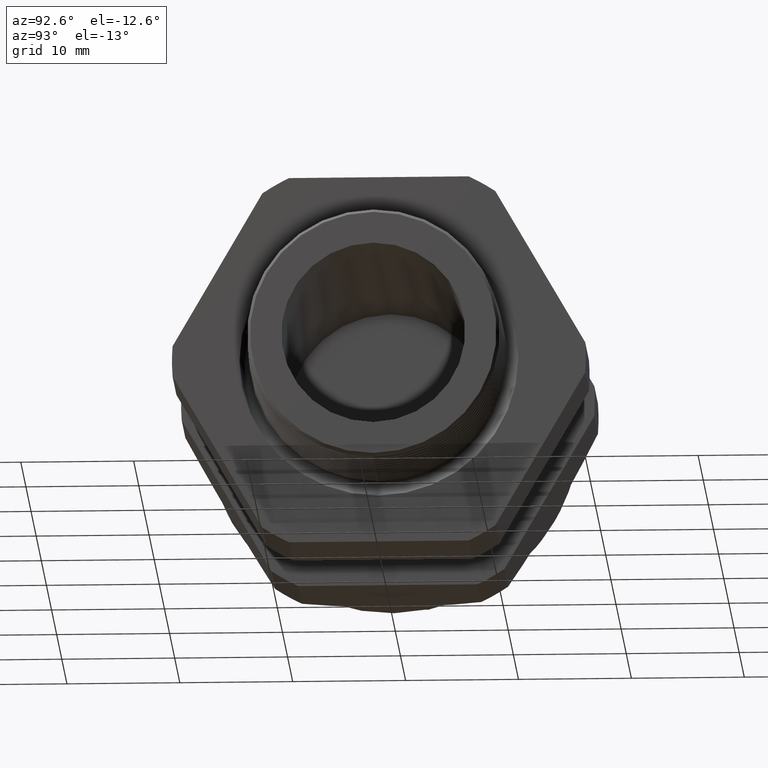
[diagram: clean part render]
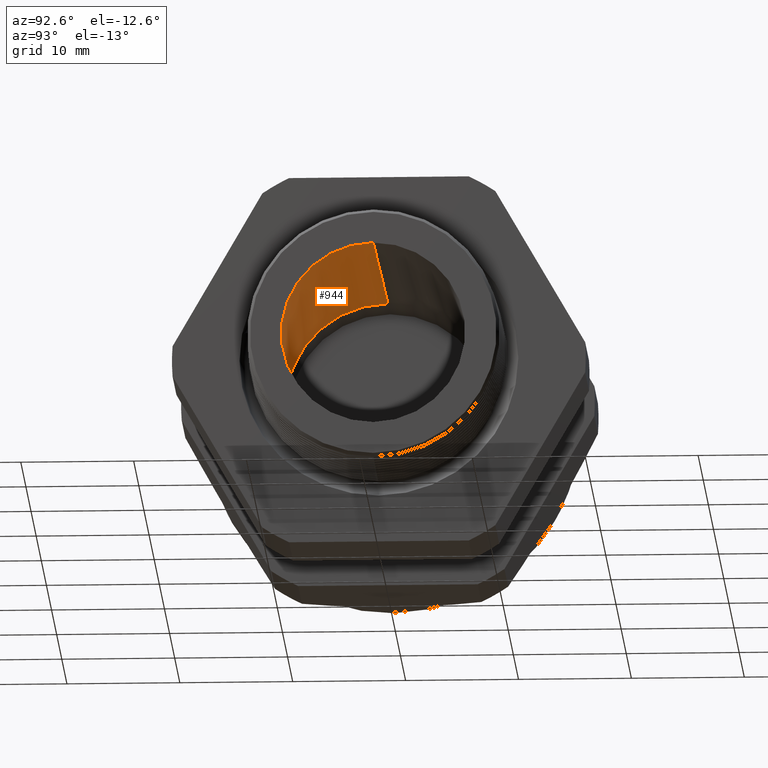
[diagram: same view with one face highlighted and labeled with its STEP entity id]
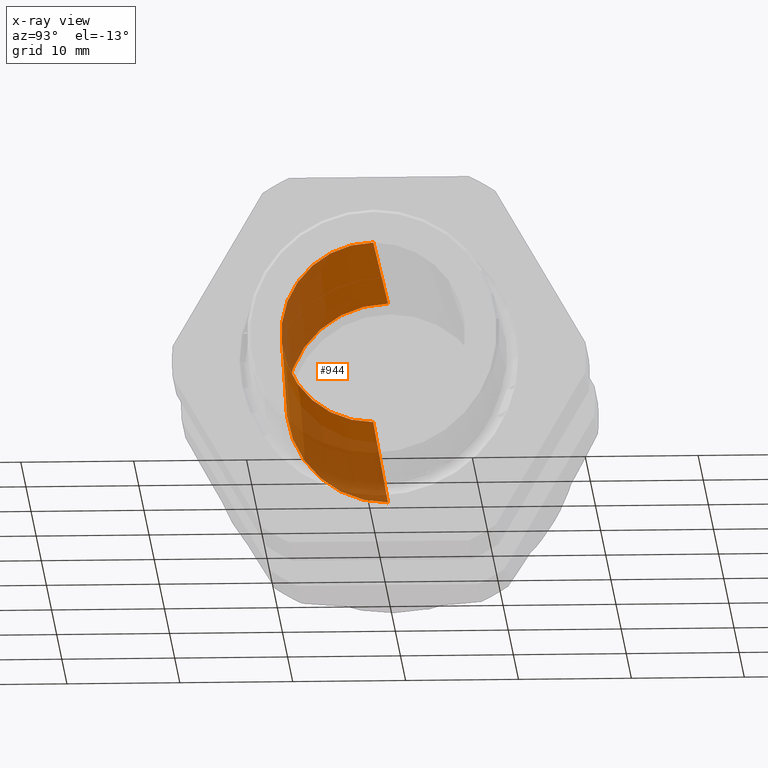
[diagram: x-ray of the same camera — body ghosted, the highlighted face saturated]
A machine part, auxiliary view. The second image highlights one B-rep face of the part: STEP entity #944.
The next image is the same camera in x-ray: the body ghosted, the highlighted face saturated — about 39% of this face is hidden behind the body in this view.
In plain terms, the highlighted conical surface has half-angle 1.753 deg.
Its self-contained STEP definition (entity closure, byte-faithful):
#479 = EDGE_CURVE ( 'NONE', #948, #888, #3488, .T. ) ;
#526 = ORIENTED_EDGE ( 'NONE', *, *, #479, .F. ) ;
#759 = EDGE_CURVE ( 'NONE', #888, #946, #4144, .T. ) ;
#888 = VERTEX_POINT ( 'NONE', #4391 ) ;
#944 = ADVANCED_FACE ( 'NONE', ( #4452 ), #4448, .F. ) ;
#945 = EDGE_LOOP ( 'NONE', ( #954, #953, #950, #526 ) ) ;
#946 = VERTEX_POINT ( 'NONE', #4514 ) ;
#948 = VERTEX_POINT ( 'NONE', #4509 ) ;
#949 = EDGE_CURVE ( 'NONE', #951, #946, #4508, .T. ) ;
#950 = ORIENTED_EDGE ( 'NONE', *, *, #759, .F. ) ;
#951 = VERTEX_POINT ( 'NONE', #4504 ) ;
#952 = EDGE_CURVE ( 'NONE', #948, #951, #4502, .T. ) ;
#953 = ORIENTED_EDGE ( 'NONE', *, *, #949, .T. ) ;
#954 = ORIENTED_EDGE ( 'NONE', *, *, #952, .T. ) ;
#2890 = DIRECTION ( 'NONE',  ( 0.0000000000000000000, 0.0000000000000000000, 1.000000000000000000 ) ) ;
#3485 = DIRECTION ( 'NONE',  ( -0.9995318591926351000, 0.0000000000000000000, 0.03059513783126741000 ) ) ;
#3486 = VECTOR ( 'NONE', #3485, 39.37007874015748900 ) ;
#3487 = CARTESIAN_POINT ( 'NONE',  ( -1.010314960629921100, 0.0000000000000000000, 0.3549999999999999800 ) ) ;
#3488 = LINE ( 'NONE', #3487, #3486 ) ;
#4140 = DIRECTION ( 'NONE',  ( 0.0000000000000000000, 0.0000000000000000000, -1.000000000000000000 ) ) ;
#4141 = DIRECTION ( 'NONE',  ( 1.000000000000000000, 0.0000000000000000000, 0.0000000000000000000 ) ) ;
#4142 = CARTESIAN_POINT ( 'NONE',  ( -1.010314960629921100, 0.0000000000000000000, 0.0000000000000000000 ) ) ;
#4143 = AXIS2_PLACEMENT_3D ( 'NONE', #4142, #4141, #4140 ) ;
#4144 = CIRCLE ( 'NONE', #4143, 0.3549999999999999800 ) ;
#4391 = CARTESIAN_POINT ( 'NONE',  ( -1.010314960629921100, 4.347496136973103500E-017, 0.3549999999999999800 ) ) ;
#4446 = DIRECTION ( 'NONE',  ( -1.000000000000000000, 0.0000000000000000000, 0.0000000000000000000 ) ) ;
#4447 = AXIS2_PLACEMENT_3D ( 'NONE', #4451, #4446, #2890 ) ;
#4448 = CONICAL_SURFACE ( 'NONE', #4447, 0.3549999999999999800, 0.03059991300296905500 ) ;
#4451 = CARTESIAN_POINT ( 'NONE',  ( -1.010314960629921100, 0.0000000000000000000, 0.0000000000000000000 ) ) ;
#4452 = FACE_OUTER_BOUND ( 'NONE', #945, .T. ) ;
#4498 = DIRECTION ( 'NONE',  ( 0.0000000000000000000, 0.0000000000000000000, -1.000000000000000000 ) ) ;
#4499 = DIRECTION ( 'NONE',  ( 1.000000000000000000, 0.0000000000000000000, 0.0000000000000000000 ) ) ;
#4500 = CARTESIAN_POINT ( 'NONE',  ( 0.1200000000000000200, 0.0000000000000000000, 0.0000000000000000000 ) ) ;
#4501 = AXIS2_PLACEMENT_3D ( 'NONE', #4500, #4499, #4498 ) ;
#4502 = CIRCLE ( 'NONE', #4501, 0.3204016610924743100 ) ;
#4504 = CARTESIAN_POINT ( 'NONE',  ( 0.1200000000000000200, 4.135642411978520400E-017, -0.3204016610924743100 ) ) ;
#4505 = DIRECTION ( 'NONE',  ( -0.9995318591926351000, 3.746823761453372400E-018, -0.03059513783126741000 ) ) ;
#4506 = VECTOR ( 'NONE', #4505, 39.37007874015748900 ) ;
#4507 = CARTESIAN_POINT ( 'NONE',  ( -1.010314960629921100, 4.347496136973103500E-017, -0.3549999999999999800 ) ) ;
#4508 = LINE ( 'NONE', #4507, #4506 ) ;
#4509 = CARTESIAN_POINT ( 'NONE',  ( 0.1200000000000000200, 0.0000000000000000000, 0.3204016610924743100 ) ) ;
#4514 = CARTESIAN_POINT ( 'NONE',  ( -1.010314960629921100, 0.0000000000000000000, -0.3549999999999999800 ) ) ;